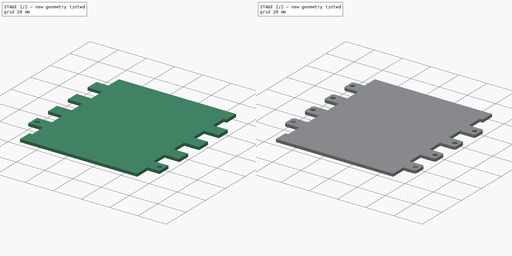
[diagram: build sequence overview — one tinted view per stage of 2, left to right]
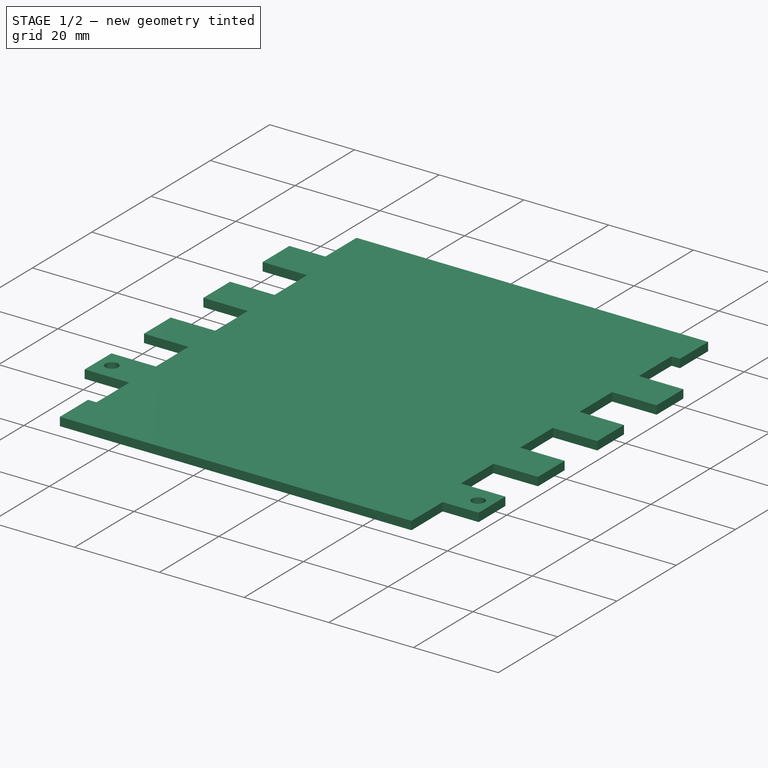
[diagram: stage 1 of 2 — iso view after this stage's code; geometry added in this stage tinted green]
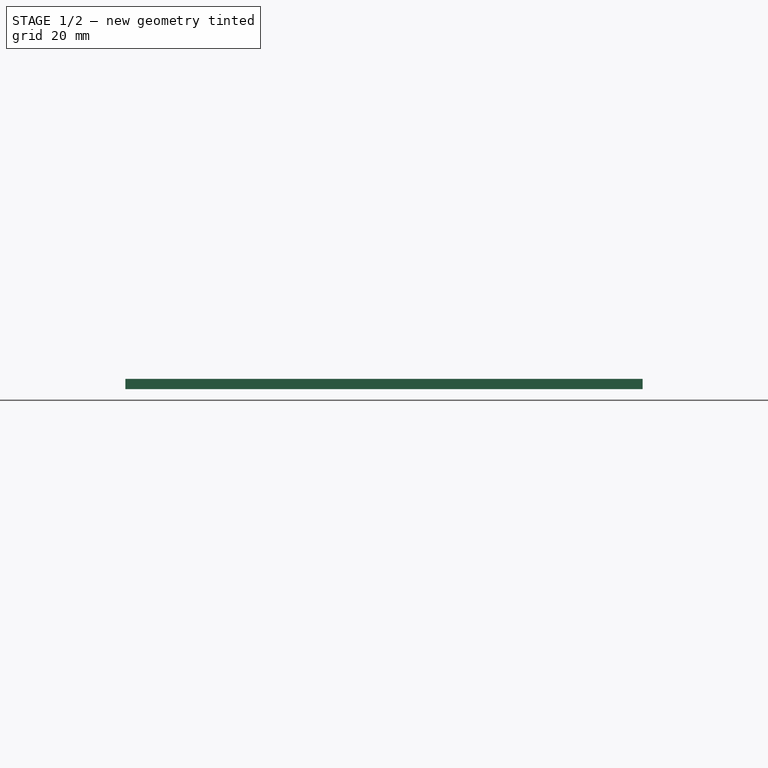
[diagram: stage 1 of 2 — front view after this stage's code; geometry added in this stage tinted green]
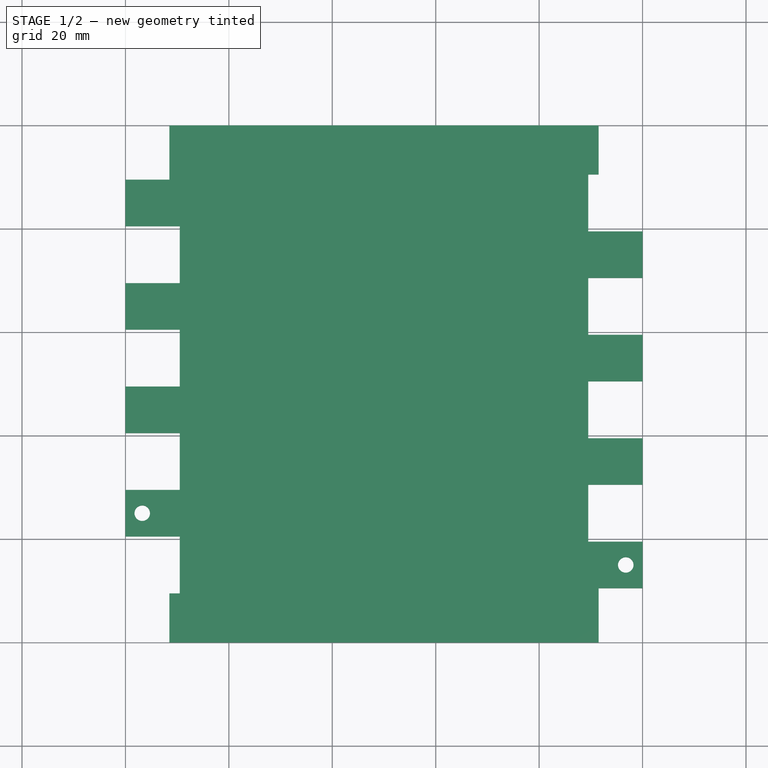
[diagram: stage 1 of 2 — top view after this stage's code; geometry added in this stage tinted green]
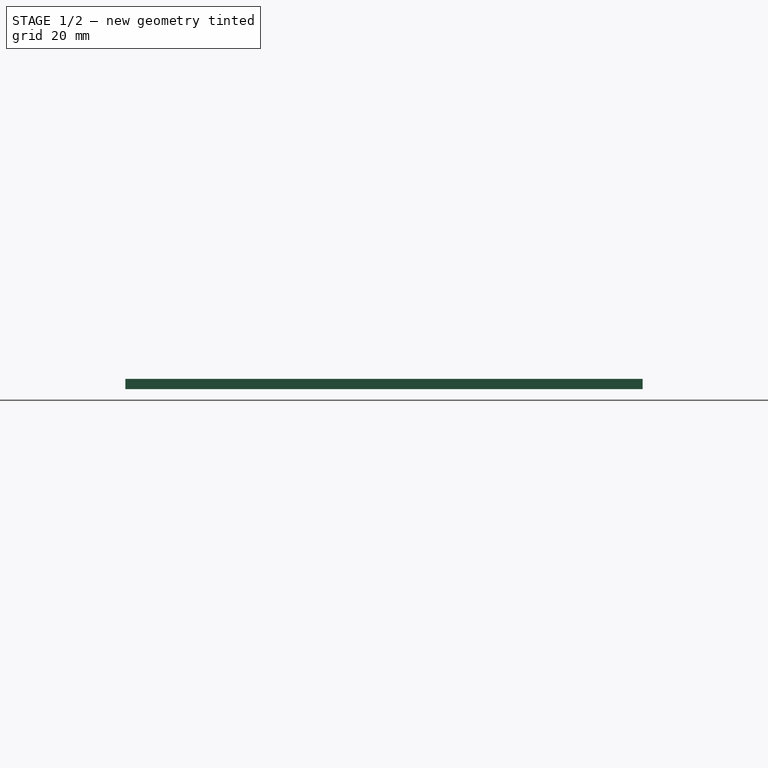
[diagram: stage 1 of 2 — right view after this stage's code; geometry added in this stage tinted green]
FCSTD DOCUMENT  (FreeCAD 0.16R6710 (Git))
Label: pared
License: All rights reserved
LicenseURL: http://en.wikipedia.org/wiki/All_rights_reserved
objects: Sketcher::SketchObject×2, PartDesign::Pad×1, PartDesign::Pocket×1, PartDesign::LinearPattern×1, Part::Fillet×1
note: 8 computed .brp shape members not serialized (recipe doc carries the construction recipe); baked Part::Feature solids carry a one-line shape summary decoded from their .brp

FEATURE [Sketcher::SketchObject] Sketch
  sketch-geometry (40):
    g0: LineSegment StartX=8.5 StartY=0 StartZ=0 EndX=8.5 EndY=9.5 EndZ=0
    g1: LineSegment StartX=8.5 StartY=9.5 StartZ=0 EndX=10.5 EndY=9.5 EndZ=0
    g2: LineSegment StartX=10.5 StartY=9.5 StartZ=0 EndX=10.5 EndY=20.5 EndZ=0
    g3: LineSegment StartX=10.5 StartY=20.5 StartZ=0 EndX=0 EndY=20.5 EndZ=0
    g4: LineSegment StartX=0 StartY=20.5 StartZ=0 EndX=0 EndY=29.5 EndZ=0
    g5: LineSegment StartX=0 StartY=29.5 StartZ=0 EndX=10.5 EndY=29.5 EndZ=0
    g6: LineSegment StartX=10.5 StartY=29.5 StartZ=0 EndX=10.5 EndY=40.5 EndZ=0
    g7: LineSegment StartX=10.5 StartY=40.5 StartZ=0 EndX=0 EndY=40.5 EndZ=0
    g8: LineSegment StartX=0 StartY=40.5 StartZ=0 EndX=0 EndY=49.5 EndZ=0
    g9: LineSegment StartX=0 StartY=49.5 StartZ=0 EndX=10.5 EndY=49.5 EndZ=0
    g10: LineSegment StartX=10.5 StartY=49.5 StartZ=0 EndX=10.5 EndY=60.5 EndZ=0
    g11: LineSegment StartX=10.5 StartY=60.5 StartZ=0 EndX=0 EndY=60.5 EndZ=0
    g12: LineSegment StartX=0 StartY=60.5 StartZ=0 EndX=0 EndY=69.5 EndZ=0
    g13: LineSegment StartX=0 StartY=69.5 StartZ=0 EndX=10.5 EndY=69.5 EndZ=0
    g14: LineSegment StartX=10.5 StartY=69.5 StartZ=0 EndX=10.5 EndY=80.5 EndZ=0
    g15: LineSegment StartX=10.5 StartY=80.5 StartZ=0 EndX=0 EndY=80.5 EndZ=0
    g16: LineSegment StartX=0 StartY=80.5 StartZ=0 EndX=0 EndY=89.5 EndZ=0
    g17: LineSegment StartX=0 StartY=89.5 StartZ=0 EndX=8.5 EndY=89.5 EndZ=0
    g18: LineSegment StartX=8.5 StartY=89.5 StartZ=0 EndX=8.5 EndY=100 EndZ=0
    g19: LineSegment StartX=91.5 StartY=100 StartZ=0 EndX=91.5 EndY=90.5 EndZ=0
    g20: LineSegment StartX=91.5 StartY=90.5 StartZ=0 EndX=89.5 EndY=90.5 EndZ=0
    g21: LineSegment StartX=89.5 StartY=90.5 StartZ=0 EndX=89.5 EndY=79.5 EndZ=0
    g22: LineSegment StartX=89.5 StartY=79.5 StartZ=0 EndX=100 EndY=79.5 EndZ=0
    g23: LineSegment StartX=100 StartY=79.5 StartZ=0 EndX=100 EndY=70.5 EndZ=0
    g24: LineSegment StartX=100 StartY=70.5 StartZ=0 EndX=89.5 EndY=70.5 EndZ=0
    g25: LineSegment StartX=89.5 StartY=70.5 StartZ=0 EndX=89.5 EndY=59.5 EndZ=0
    g26: LineSegment StartX=89.5 StartY=59.5 StartZ=0 EndX=100 EndY=59.5 EndZ=0
    g27: LineSegment StartX=100 StartY=59.5 StartZ=0 EndX=100 EndY=50.5 EndZ=0
    g28: LineSegment StartX=100 StartY=50.5 StartZ=0 EndX=89.5 EndY=50.5 EndZ=0
    g29: LineSegment StartX=89.5 StartY=50.5 StartZ=0 EndX=89.5 EndY=39.5 EndZ=0
    g30: LineSegment StartX=89.5 StartY=39.5 StartZ=0 EndX=100 EndY=39.5 EndZ=0
    g31: LineSegment StartX=100 StartY=39.5 StartZ=0 EndX=100 EndY=30.5 EndZ=0
    g32: LineSegment StartX=100 StartY=30.5 StartZ=0 EndX=89.5 EndY=30.5 EndZ=0
    g33: LineSegment StartX=89.5 StartY=30.5 StartZ=0 EndX=89.5 EndY=19.5 EndZ=0
    g34: LineSegment StartX=89.5 StartY=19.5 StartZ=0 EndX=100 EndY=19.5 EndZ=0
    g35: LineSegment StartX=100 StartY=19.5 StartZ=0 EndX=100 EndY=10.5 EndZ=0
    g36: LineSegment StartX=100 StartY=10.5 StartZ=0 EndX=91.5 EndY=10.5 EndZ=0
    g37: LineSegment StartX=91.5 StartY=10.5 StartZ=0 EndX=91.5 EndY=0 EndZ=0
    g38: LineSegment StartX=8.5 StartY=0 StartZ=0 EndX=91.5 EndY=0 EndZ=0
    g39: LineSegment StartX=8.5 StartY=100 StartZ=0 EndX=91.5 EndY=100 EndZ=0
  constraints (120):
    c: Vertical(g0)
    c: Coincident(g0,g1)
    c: Coincident(g1,g2)
    c: Vertical(g2)
    c: Coincident(g2,g3)
    c: Horizontal(g3)
    c: Coincident(g3,g4)
    c: Vertical(g4)
    c: Coincident(g4,g5)
    c: Horizontal(g5)
    c: Coincident(g5,g6)
    c: Vertical(g6)
    c: Coincident(g6,g7)
    c: Horizontal(g7)
    c: Coincident(g7,g8)
    c: Vertical(g8)
    c: Coincident(g8,g9)
    c: Horizontal(g9)
    c: Coincident(g9,g10)
    c: Vertical(g10)
    c: Coincident(g10,g11)
    c: Horizontal(g11)
    c: Coincident(g11,g12)
    c: Vertical(g12)
    c: Coincident(g12,g13)
    c: Horizontal(g13)
    c: Coincident(g13,g14)
    c: Vertical(g14)
    c: Coincident(g14,g15)
    c: Horizontal(g15)
    c: Coincident(g15,g16)
    c: Vertical(g16)
    c: Coincident(g16,g17)
    c: Horizontal(g17)
    c: Coincident(g17,g18)
    c: Vertical(g18)
    c: Equal(g2,g6)
    c: Equal(g6,g10)
    c: Equal(g10,g14)
    c: Horizontal(g1)
    c: DistanceY(g2,g2) = 11
    c: DistanceX(g1,g1) = 2
    c: DistanceY(g0,g0) = 9.5
    c: Equal(g4,g8)
    c: Equal(g8,g12)
    c: Equal(g12,g16)
    c: DistanceY(g4,g4) = 9
    c: Equal(g3,g5)
    c: Equal(g5,g7)
    c: Equal(g7,g9)
    c: Equal(g9,g11)
    c: Equal(g11,g13)
    c: Equal(g13,g15)
    c: DistanceX(g3,g3) = 10.5
    c: DistanceX(g17,g17) = 8.5
    c: DistanceY(g18,g18) = 10.5
    c: Vertical(g19)
    c: Coincident(g19,g20)
    c: Coincident(g20,g21)
    c: Vertical(g21)
    c: Coincident(g21,g22)
    c: Horizontal(g22)
    c: Coincident(g22,g23)
    c: Vertical(g23)
    c: Coincident(g23,g24)
    c: Horizontal(g24)
    c: Coincident(g24,g25)
    c: Vertical(g25)
    c: Coincident(g25,g26)
    c: Horizontal(g26)
    c: Coincident(g26,g27)
    c: Vertical(g27)
    c: Coincident(g27,g28)
    c: Horizontal(g28)
    c: Coincident(g28,g29)
    c: Vertical(g29)
    c: Coincident(g29,g30)
    c: Horizontal(g30)
    c: Coincident(g30,g31)
    c: Vertical(g31)
    c: Coincident(g31,g32)
    c: Horizontal(g32)
    c: Coincident(g32,g33)
    c: Vertical(g33)
    c: Coincident(g33,g34)
    c: Horizontal(g34)
    c: Coincident(g34,g35)
    c: Vertical(g35)
    c: Coincident(g35,g36)
    c: Horizontal(g36)
    c: Coincident(g36,g37)
    c: Vertical(g37)
    c: Equal(g21,g25)
    c: Equal(g25,g29)
    c: Equal(g29,g33)
    c: Horizontal(g20)
    c: Equal(g23,g27)
    c: Equal(g27,g31)
    c: Equal(g31,g35)
    c: Equal(g22,g24)
    c: Equal(g24,g26)
    c: Equal(g26,g28)
    c: Equal(g28,g30)
    c: Equal(g30,g32)
    c: Equal(g32,g34)
    c: DistanceY(g37,g37) = 10.5
    c: DistanceX(g36,g36) = 8.5
    c: DistanceY(g35,g35) = 9
    c: DistanceX(g34,g34) = 10.5
    c: DistanceY(g19,g19) = 9.5
    c: DistanceX(g20,g20) = 2
    c: DistanceY(g33,g33) = 11
    c: Horizontal(g38)
    c: Horizontal(g39)
    c: Coincident(g39,g19)
    c: Coincident(g39,g18)
    c: Coincident(g38,g37)
    c: Coincident(g38,g0)
    c: DistanceX(g38,g38) = 83
    c: Equal(g39,g38)
FEATURE [PartDesign::Pad] Pad
  Length = 2
  Length2 = 100
  Sketch = -> Sketch
  Type = 0
FEATURE [Sketcher::SketchObject] Sketch001
  ExternalGeometry = -> [Pad]
  Placement = pos=(0,0,2) rot=(0,0,1;0rad)
  Support = -> Pad [Face42]
  sketch-geometry (2):
    g0: Circle CenterX=3.25 CenterY=25 CenterZ=0 NormalX=0 NormalY=0 NormalZ=1 Radius=1.5
    g1: Circle CenterX=96.75 CenterY=15 CenterZ=0 NormalX=0 NormalY=0 NormalZ=1 Radius=1.5
  constraints (6):
    c: Radius(g0) = 1.5
    c: DistanceY(g-3,g0) = 4.5
    c: DistanceX(g-3,g0) = 3.25
    c: Equal(g1,g0)
    c: DistanceY(g-4,g1) = 4.5
    c: DistanceX(g1,g-4) = 3.25
FEATURE [PartDesign::Pocket] Pocket
  Length = 5
  Sketch = -> Sketch001
  Type = 1
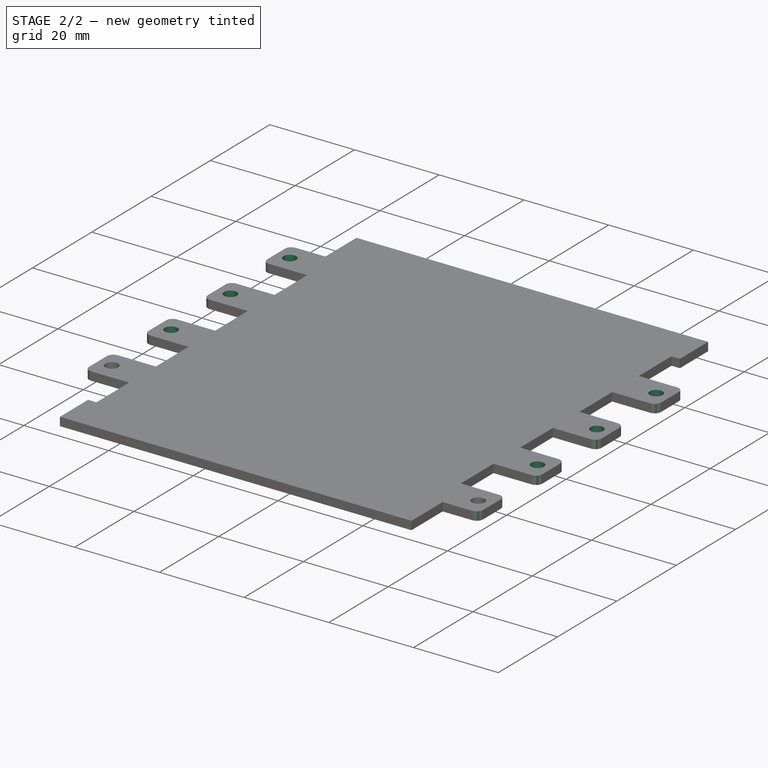
[diagram: stage 2 of 2 — iso view after this stage's code; geometry added in this stage tinted green]
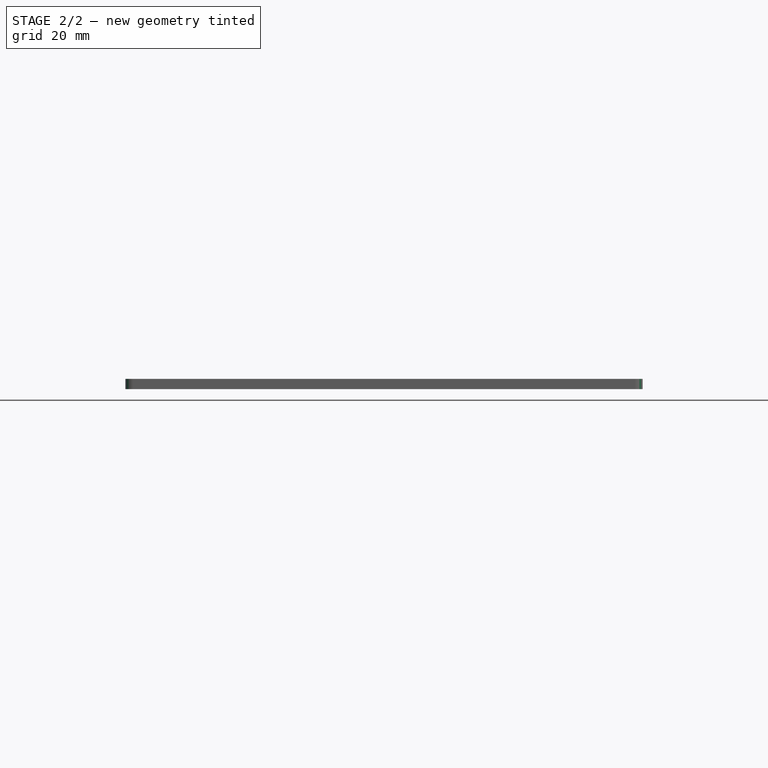
[diagram: stage 2 of 2 — front view after this stage's code; geometry added in this stage tinted green]
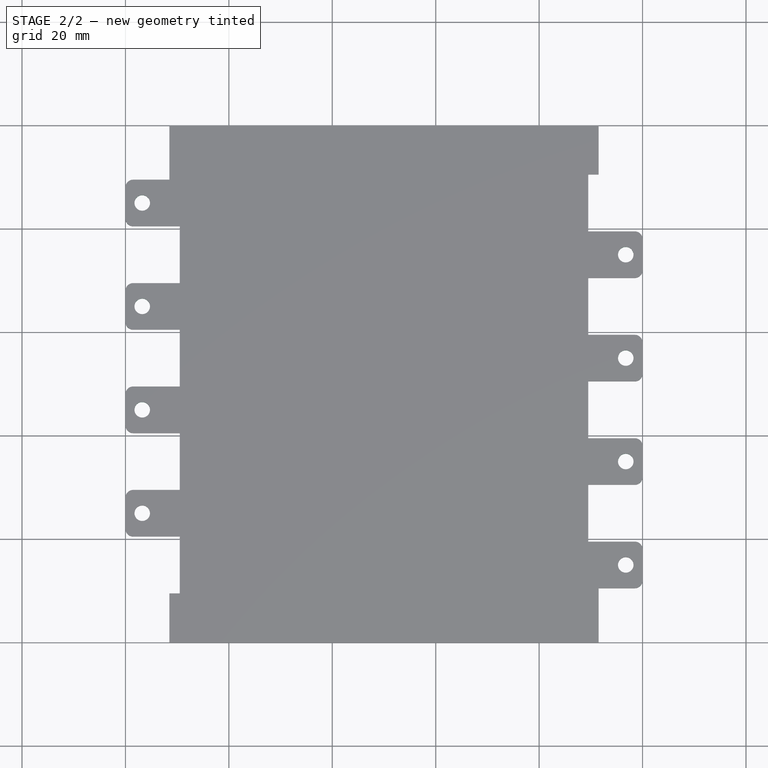
[diagram: stage 2 of 2 — top view after this stage's code; geometry added in this stage tinted green]
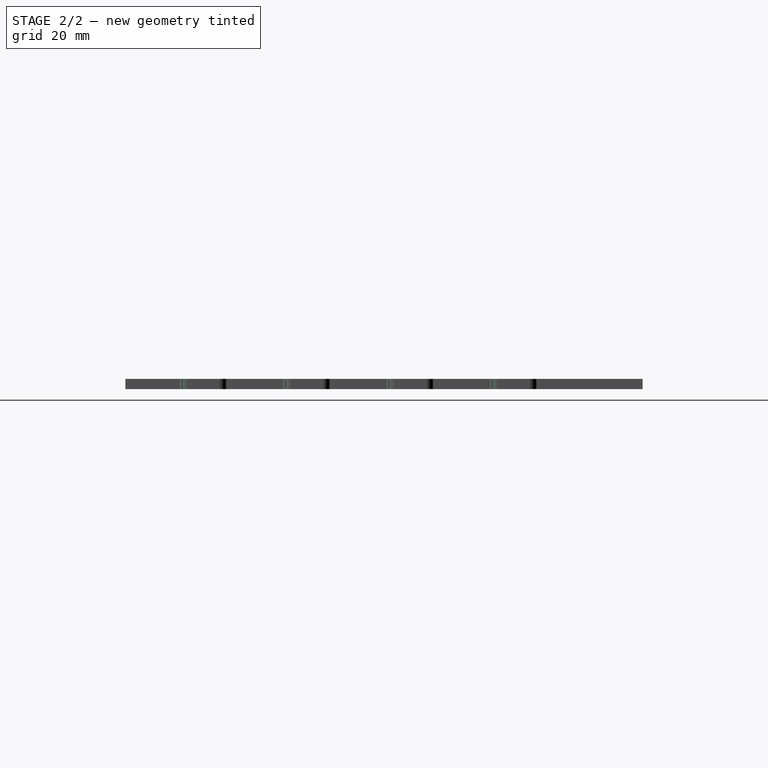
[diagram: stage 2 of 2 — right view after this stage's code; geometry added in this stage tinted green]
FEATURE [PartDesign::LinearPattern] LinearPattern
  Direction = -> Sketch001 [V_Axis]
  Length = 60
  Occurrences = 4
  Originals = -> [Pocket]
FEATURE [Part::Fillet] Fillet
  Base = -> LinearPattern
  Edges = 16 edges r=1.5: [Edge103,Edge104,Edge105,Edge106,Edge111,Edge112,Edge113,Edge114,Edge119,Edge120,Edge121,Edge122,Edge127,Edge128,Edge129,Edge130]
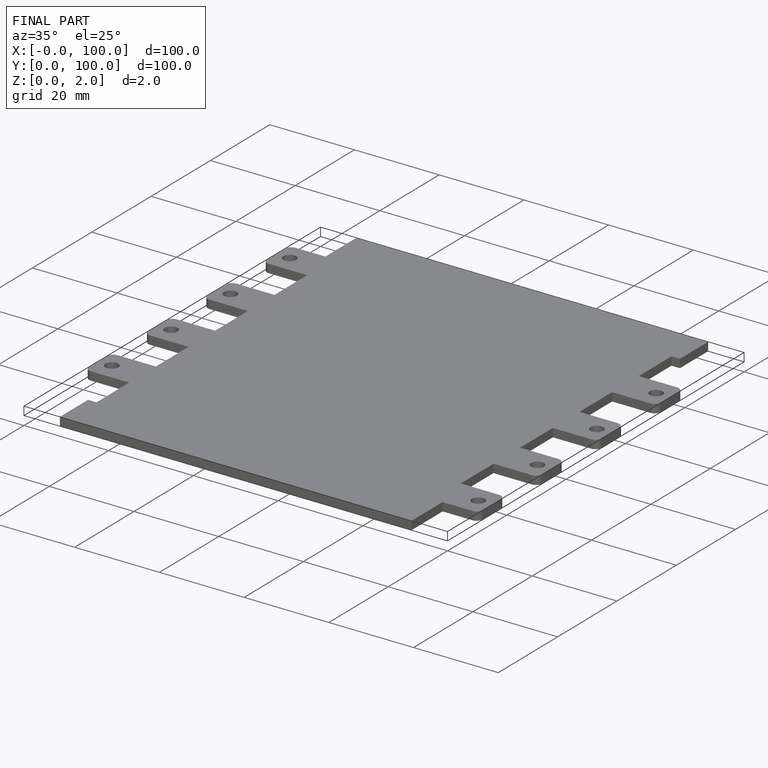
[diagram: finished part — iso view with bounding-box wireframe]
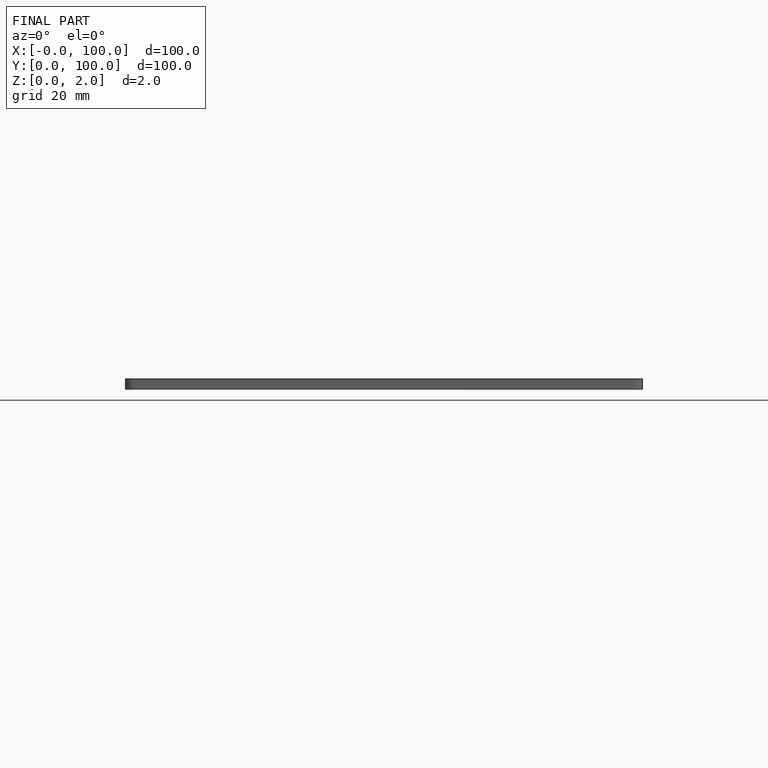
[diagram: finished part — front view with bounding-box wireframe]
